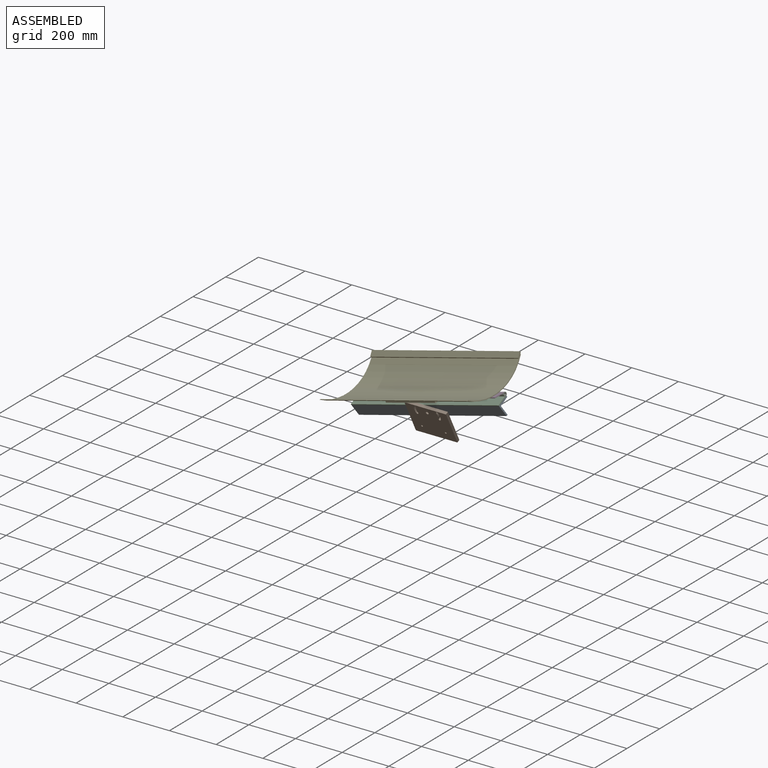
[diagram: assembled view]
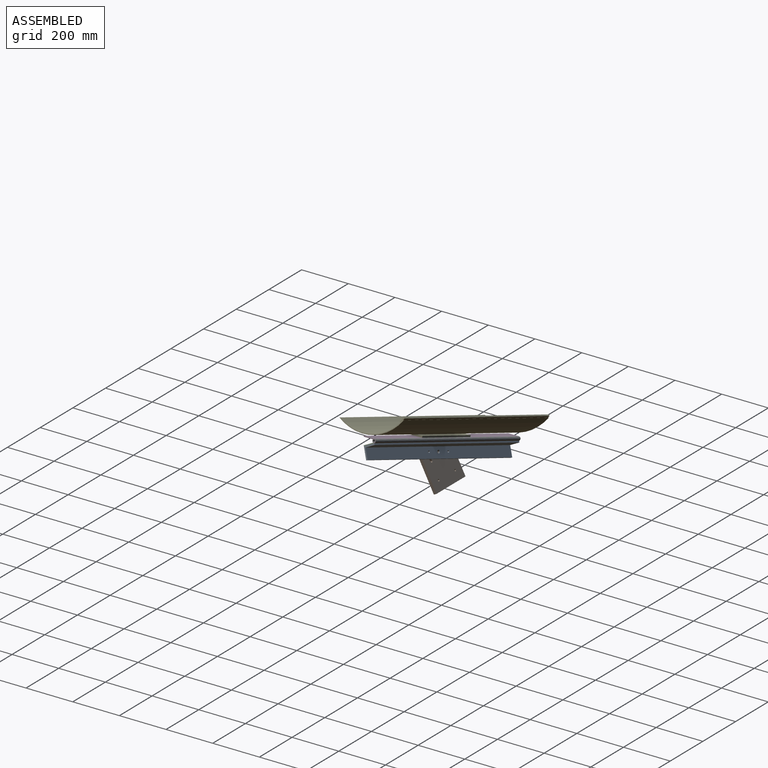
[diagram: assembled view, second angle]
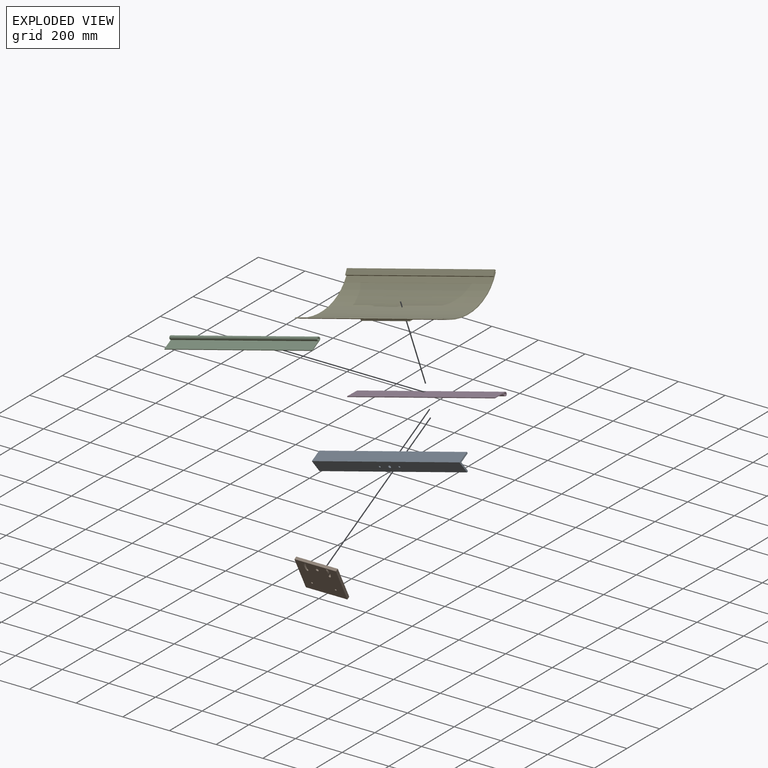
[diagram: exploded view]
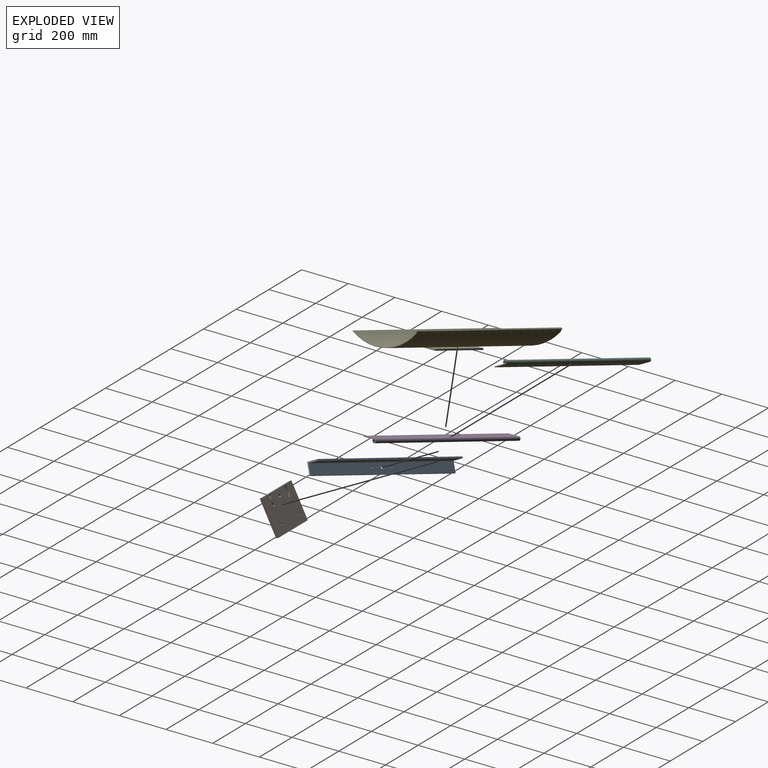
[diagram: exploded view, second angle]
ASSEMBLY  parts=5 mates=4
PART A: 11 faces, bbox 762x50.8x50.8 mm
  f0: plane 762x50.8mm, normal (0,-1,0), area 38709.6mm2, adj f1,f5,f6,f7
  f1: plane 762x50.8mm, normal (0,0,-1), area 38471.2mm2, adj f0,f2,f6,f7,f8,f9,f10
  f2: plane 762x6.35mm, normal (0,1,0), area 4838.7mm2, adj f1,f3,f6,f7
  f3: plane 762x44.45mm, normal (0,0,1), area 33632.5mm2, adj f2,f4,f6,f7,f8,f9,f10
  f4: plane 762x44.45mm, normal (0,1,0), area 33870.9mm2, adj f3,f5,f6,f7
  f5: plane 762x6.35mm, normal (0,0,1), area 4838.7mm2, adj f0,f4,f6,f7
  f6: plane 50.8x50.8mm, normal (1,0,0), area 604.8mm2, adj f0,f1,f2,f3,f4,f5
  f7: plane 50.8x50.8mm, normal (-1,0,0), area 604.8mm2, adj f0,f1,f2,f3,f4,f5
  f8: cylinder r=6.35mm len=12.7mm, axis (0,0,-1), area 253.4mm2, adj f1,f3
  f9: cylinder r=4.22mm len=8.43mm, axis (0,0,-1), area 168.2mm2, adj f1,f3
  f10: cylinder r=4.22mm len=8.43mm, axis (0,0,-1), area 168.2mm2, adj f1,f3
PART B: 17 faces, bbox 177.8x12.7x152.4 mm
  f0: plane 177.8x152.4mm, normal (0,-1,0), area 26053mm2, adj f2,f3,f4,f5,f6,f7,f8,f9
  f1: plane 177.8x152.4mm, normal (0,1,0), area 26053mm2, adj f2,f3,f4,f5,f6,f7,f8,f9
  f2: plane 177.8x12.7mm, normal (0,0,-1), area 2258.1mm2, adj f0,f1,f3,f14
  f3: plane 152.4x12.7mm, normal (1,0,0), area 1935.5mm2, adj f0,f1,f2,f4
  f4: plane 177.8x12.7mm, normal (0,0,1), area 2258.1mm2, adj f0,f1,f3,f14
  f5: cylinder r=6.35mm len=12.7mm, axis (0,1,0), area 506.7mm2, adj f0,f1
  f6: cylinder r=46.04mm len=31.49mm, axis (0,-1,0), area 408.2mm2, adj f0,f1,f7,f9
  f7: cylinder r=4.76mm len=12.7mm, axis (0,-1,0), area 190mm2, adj f0,f1,f6,f8
  f8: cylinder r=55.56mm len=38.01mm, axis (0,-1,0), area 492.6mm2, adj f0,f1,f7,f9
  f9: cylinder r=4.76mm len=12.7mm, axis (0,-1,0), area 190mm2, adj f0,f1,f6,f8
  f10: cylinder r=4.76mm len=12.7mm, axis (0,-1,0), area 190mm2, adj f0,f1,f11,f13
  f11: cylinder r=55.56mm len=38.01mm, axis (0,-1,0), area 492.6mm2, adj f0,f1,f10,f12
  f12: cylinder r=4.76mm len=12.7mm, axis (0,-1,0), area 190mm2, adj f0,f1,f11,f13
  f13: cylinder r=46.04mm len=31.49mm, axis (0,-1,0), area 408.2mm2, adj f0,f1,f10,f12
  f14: plane 152.4x12.7mm, normal (-1,0,0), area 1935.5mm2, adj f0,f1,f2,f4
  f15: cylinder r=3.97mm len=12.7mm, axis (0,-1,0), area 316.7mm2, adj f0,f1
  f16: cylinder r=3.97mm len=12.7mm, axis (0,-1,0), area 316.7mm2, adj f0,f1
PART C: 7 faces, bbox 16x762x58.8 mm
  f0: plane 762x50.8mm, normal (-1,0,0), area 38709.6mm2, adj f1,f3,f5,f6
  f1: cylinder r=8mm len=762mm, axis (0,1,0), area 32677.8mm2, adj f0,f2,f5,f6
  f2: plane 762x44.42mm, normal (1,0,0), area 33846.8mm2, adj f1,f3,f5,f6
  f3: plane 762x3.18mm, normal (0,0,1), area 2419.3mm2, adj f0,f2,f5,f6
  f4: cylinder r=4.83mm len=762mm, axis (0,1,0), area 23105.9mm2, adj f5,f6
  f5: plane 58.8x16mm, normal (0,-1,0), area 275.1mm2, adj f0,f1,f2,f3,f4
  f6: plane 58.8x16mm, normal (0,1,0), area 275.1mm2, adj f0,f1,f2,f3,f4
PART D: same geometry as C
PART E: 17 faces, bbox 80.6x762x308.1 mm
  f0: plane 762x4.87mm, normal (1,0,0), area 3713.6mm2, adj f1,f3,f4,f5
  f1: cylinder r=231.78mm len=762mm, axis (0,1,0), area 247940.9mm2, adj f0,f2,f4,f5,f6,f7,f11,f12
  f2: plane 762x4.46mm, normal (1,0,0), area 3401.3mm2, adj f1,f4,f5,f16
  f3: cylinder r=228.6mm len=762mm, axis (0,1,0), area 232842.9mm2, adj f0,f4,f5,f15
  f4: plane 308.13x68.49mm, normal (0,-1,0), area 1202.3mm2, adj f0,f1,f2,f3,f13,f14,f15,f16
  f5: plane 308.13x68.49mm, normal (0,1,0), area 1202.3mm2, adj f0,f1,f2,f3,f13,f14,f15,f16
  f6: plane 254x36.43mm, normal (0.98,0,-0.17), area 9394.9mm2, adj f1,f10,f11,f12
  f7: plane 254x42.26mm, normal (0.98,0,-0.17), area 10900.7mm2, adj f1,f9,f11,f12
  f8: plane 254x100.06mm, normal (-0.98,0,0.17), area 25806.4mm2, adj f9,f10,f11,f12
  f9: plane 254x6.5mm, normal (-0.17,0,-0.98), area 1677.4mm2, adj f7,f8,f11,f12
  f10: plane 254x6.5mm, normal (0.17,0,0.98), area 1677.4mm2, adj f6,f8,f11,f12
  f11: plane 101.2x24.15mm, normal (0,-1,0), area 667.3mm2, adj f1,f6,f7,f8,f9,f10
  f12: plane 101.2x24.15mm, normal (0,1,0), area 667.3mm2, adj f1,f6,f7,f8,f9,f10
  f13: plane 762x5.18mm, normal (0.62,0,-0.78), area 5032.2mm2, adj f4,f5,f14,f16
  f14: plane 762x19.94mm, normal (0.78,0,0.62), area 19354.8mm2, adj f4,f5,f13,f15
  f15: plane 762x4.98mm, normal (-0.62,0,0.78), area 4838.7mm2, adj f3,f4,f5,f14
  f16: plane 762x7.8mm, normal (-0.78,0,-0.62), area 7569.1mm2, adj f2,f4,f5,f13
PLACE A rot(axis=(-0.95,-0.17,-0.27),65.4deg) t=(-393.93,241.72,353.5)mm
PLACE B rot(axis=(1,0,0),27.4deg) t=(-385.24,252.71,332.32)mm fixed
PLACE C rot(axis=(0.51,-0.73,0.45),145.4deg) t=(-396.75,283.37,383.55)mm
PLACE D rot(axis=(0.73,0.46,-0.51),117.7deg) t=(-396.75,283.37,383.55)mm
PLACE E rot(axis=(0.47,-0.71,0.52),135.6deg) t=(-481.7,217.23,611.92)mm
MATE revolute D.f4 <-> C.f4  axis (0.94,-0.16,0.3) through (-38.73,223.95,499.52)mm
MATE fastened E.f8 <-> D.f0  axis (0.31,0.04,-0.95) through (-406.45,230.39,386.36)mm
MATE fastened C.f0 <-> A.f0  axis (0.34,0.43,-0.83) through (-393.97,264.28,365.19)mm
MATE revolute A.f8 <-> B.f5  axis (0,-0.89,-0.46) through (-385.24,252.71,332.32)mm
